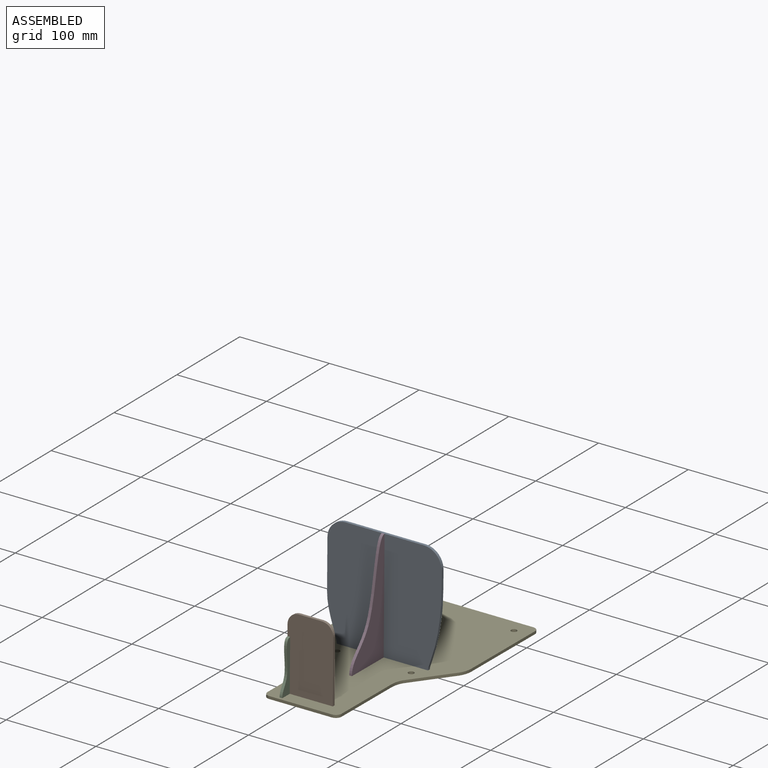
[diagram: assembled view]
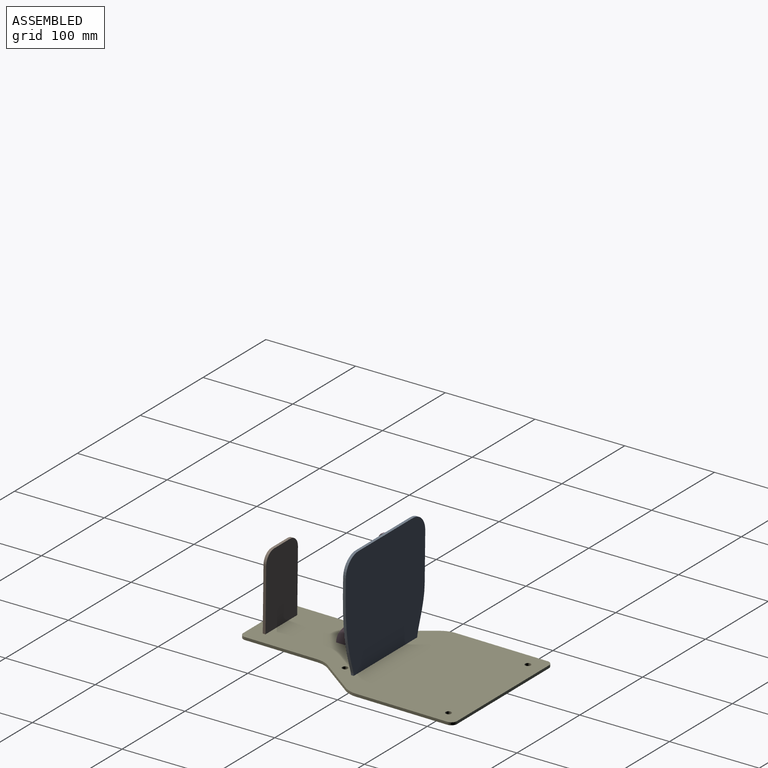
[diagram: assembled view, second angle]
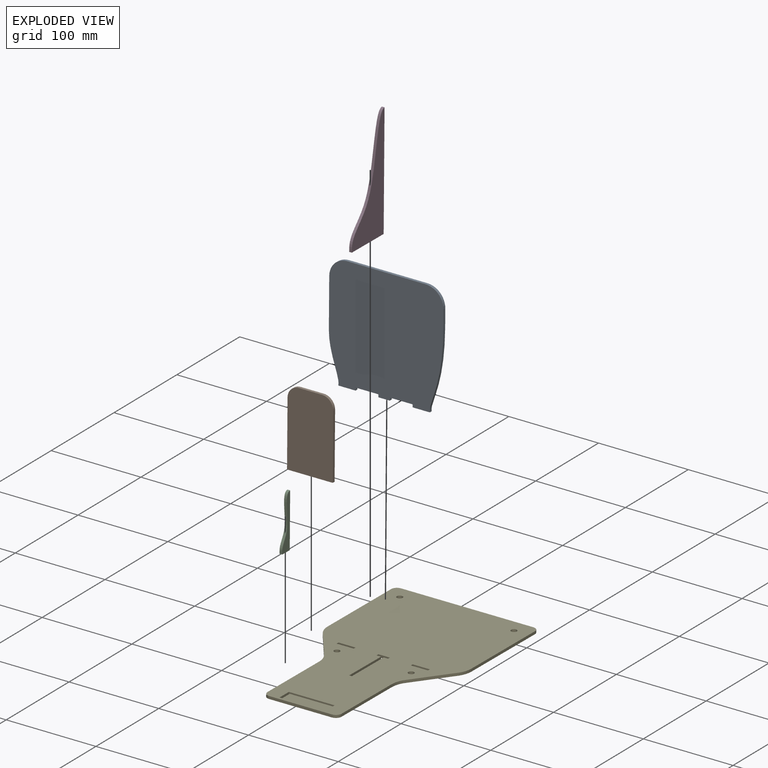
[diagram: exploded view]
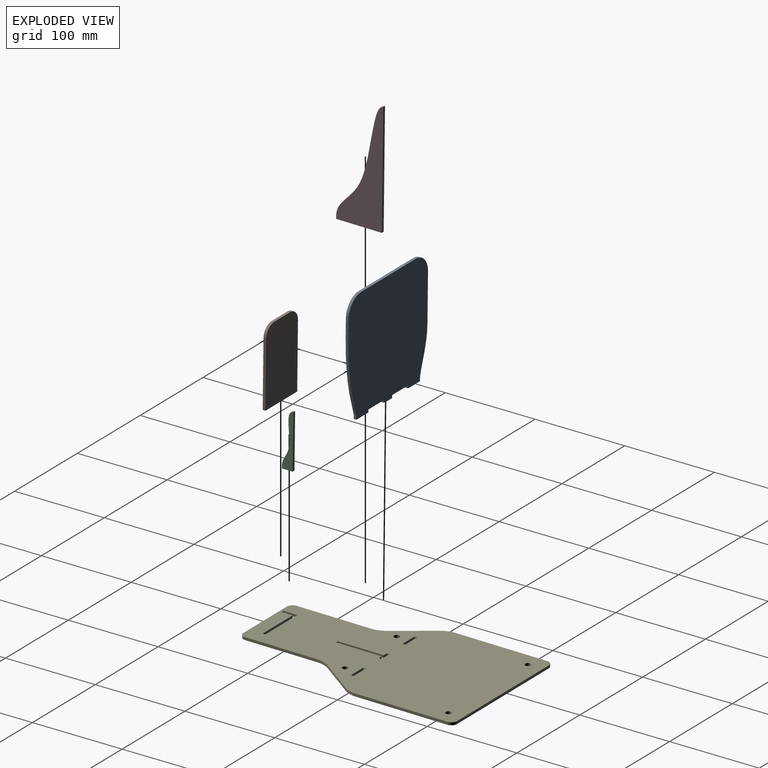
[diagram: exploded view, second angle]
ASSEMBLY  parts=5 mates=4
PART A: 20 faces, bbox 127x3x127 mm
  f0: plane 19.05x3mm, normal (0,0,-1), area 57.2mm2, adj f1,f17,f18,f19
  f1: plane 3x3mm, normal (1,0,0), area 9mm2, adj f0,f2,f18,f19
  f2: plane 25.4x3mm, normal (0,0,-1), area 76.2mm2, adj f1,f3,f18,f19
  f3: plane 3x3mm, normal (-1,0,0), area 9mm2, adj f2,f4,f18,f19
  f4: plane 12.7x3mm, normal (0,0,-1), area 38.1mm2, adj f3,f5,f18,f19
  f5: plane 3x3mm, normal (1,0,0), area 9mm2, adj f4,f6,f18,f19
  f6: plane 25.4x3mm, normal (0,0,-1), area 76.2mm2, adj f5,f7,f18,f19
  f7: plane 3x3mm, normal (-1,0,0), area 9mm2, adj f6,f8,f18,f19
  f8: plane 19.05x3mm, normal (0,0,-1), area 57.1mm2, adj f7,f9,f18,f19
  f9: plane 3x3mm, normal (1,0,0), area 9mm2, adj f8,f10,f18,f19
  f10: extruded ~85.29x14.33mm, area 260.9mm2, adj f9,f11,f18,f19
  f11: plane 18.71x3mm, normal (1,0,0), area 56.1mm2, adj f10,f12,f18,f19
  f12: cylinder r=20mm len=20mm, axis (0,1,0), area 94.2mm2, adj f11,f13,f18,f19
  f13: plane 87x3mm, normal (0,0,1), area 261mm2, adj f12,f14,f18,f19
  f14: cylinder r=20mm len=20mm, axis (0,1,0), area 94.2mm2, adj f13,f15,f18,f19
  f15: plane 53.82x3mm, normal (-1,0,0), area 161.5mm2, adj f14,f16,f18,f19
  f16: extruded ~50.18x11.07mm, area 154.8mm2, adj f15,f17,f18,f19
  f17: plane 3x3mm, normal (-1,0,0), area 9mm2, adj f0,f16,f18,f19
  f18: plane 127x127mm, normal (0,-1,0), area 15090mm2, adj f0,f1,f2,f3,f4,f5,f6,f7
  f19: plane 127x127mm, normal (0,1,0), area 15090mm2, adj f0,f1,f2,f3,f4,f5,f6,f7
PART B: 8 faces, bbox 50.8x3x85 mm
  f0: cylinder r=12.7mm len=12.7mm, axis (0,1,0), area 59.8mm2, adj f1,f5,f6,f7
  f1: plane 72.3x3mm, normal (-1,0,0), area 216.9mm2, adj f0,f2,f6,f7
  f2: plane 50.8x3mm, normal (0,0,-1), area 152.4mm2, adj f1,f3,f6,f7
  f3: plane 72.3x3mm, normal (1,0,0), area 216.9mm2, adj f2,f4,f6,f7
  f4: cylinder r=12.7mm len=12.7mm, axis (0,1,0), area 59.8mm2, adj f3,f5,f6,f7
  f5: plane 25.4x3mm, normal (0,0,1), area 76.2mm2, adj f0,f4,f6,f7
  f6: plane 85x50.8mm, normal (0,-1,0), area 4248.8mm2, adj f0,f1,f2,f3,f4,f5
  f7: plane 85x50.8mm, normal (0,1,0), area 4248.8mm2, adj f0,f1,f2,f3,f4,f5
PART C: 6 faces, bbox 3x14.6x60 mm
  f0: plane 60x3mm, normal (0,-1,0), area 180mm2, adj f1,f3,f4,f5
  f1: plane 12x3mm, normal (0,0,-1), area 36mm2, adj f0,f2,f4,f5
  f2: plane 3x3mm, normal (0,1,0), area 9mm2, adj f1,f3,f4,f5
  f3: extruded ~57x12mm, area 183.9mm2, adj f0,f2,f4,f5
  f4: plane 60x14.64mm, normal (1,0,0), area 372.6mm2, adj f0,f1,f2,f3
  f5: plane 60x14.64mm, normal (-1,0,0), area 372.6mm2, adj f0,f1,f2,f3
PART D: 6 faces, bbox 3x50.8x127 mm
  f0: plane 50.8x3mm, normal (0,0,-1), area 152.4mm2, adj f1,f3,f4,f5
  f1: plane 127x3mm, normal (0,1,0), area 381mm2, adj f0,f2,f4,f5
  f2: extruded ~124x50.8mm, area 413.9mm2, adj f1,f3,f4,f5
  f3: plane 3x3mm, normal (0,-1,0), area 9mm2, adj f0,f2,f4,f5
  f4: plane 127x50.8mm, normal (1,0,0), area 2928.2mm2, adj f0,f1,f2,f3
  f5: plane 127x50.8mm, normal (-1,0,0), area 2928.2mm2, adj f0,f1,f2,f3
PART E: 44 faces, bbox 159.8x265.1x3 mm
  f0: cylinder r=25.4mm len=15.79mm, axis (0,0,-1), area 51.1mm2, adj f1,f41,f42,f43
  f1: plane 37.85x27.63mm, normal (0.81,-0.59,0), area 140.6mm2, adj f0,f2,f42,f43
  f2: cylinder r=25.4mm len=16.87mm, axis (0,0,-1), area 55.4mm2, adj f1,f3,f42,f43
  f3: plane 101.6x3mm, normal (1,0,0), area 304.8mm2, adj f2,f4,f42,f43
  f4: cylinder r=6.35mm len=6.35mm, axis (0,0,-1), area 29.9mm2, adj f3,f5,f42,f43
  f5: plane 147.12x3mm, normal (0,1,0), area 441.4mm2, adj f4,f6,f42,f43
  f6: cylinder r=6.35mm len=6.35mm, axis (0,0,-1), area 29.9mm2, adj f5,f7,f42,f43
  f7: plane 101.6x3mm, normal (-1,0,0), area 304.8mm2, adj f6,f8,f42,f43
  f8: cylinder r=25.4mm len=14.72mm, axis (0,0,-1), area 47.1mm2, adj f7,f9,f42,f43
  f9: plane 37.8x27.7mm, normal (-0.81,-0.59,0), area 140.6mm2, adj f8,f10,f42,f43
  f10: cylinder r=25.4mm len=15.77mm, axis (0,0,-1), area 51mm2, adj f9,f11,f42,f43
  f11: plane 82.55x3mm, normal (-1,0,0), area 247.7mm2, adj f10,f12,f42,f43
  f12: cylinder r=6.35mm len=6.35mm, axis (0,0,-1), area 29.9mm2, adj f11,f13,f42,f43
  f13: plane 69.69x3mm, normal (0,-1,0), area 209.1mm2, adj f12,f14,f42,f43
  f14: cylinder r=6.35mm len=6.35mm, axis (0,0,-1), area 29.9mm2, adj f13,f41,f42,f43
  f15: plane 47.8x3mm, normal (0,1,0), area 143.4mm2, adj f16,f33,f42,f43
  f16: plane 12x3mm, normal (-1,0,0), area 36mm2, adj f15,f17,f42,f43
  f17: plane 3x3mm, normal (0,1,0), area 9mm2, adj f16,f18,f42,f43
  f18: plane 15x3mm, normal (1,0,0), area 45mm2, adj f17,f19,f42,f43
  f19: plane 50.8x3mm, normal (0,-1,0), area 152.4mm2, adj f18,f33,f42,f43
  f20: plane 19.05x3mm, normal (0,1,0), area 57.2mm2, adj f21,f38,f42,f43
  f21: plane 3x3mm, normal (1,0,0), area 9mm2, adj f20,f22,f42,f43
  f22: plane 19.05x3mm, normal (0,-1,0), area 57.2mm2, adj f21,f38,f42,f43
  f23: plane 19.05x3mm, normal (0,1,0), area 57.1mm2, adj f24,f39,f42,f43
  f24: plane 3x3mm, normal (1,0,0), area 9mm2, adj f23,f25,f42,f43
  f25: plane 19.05x3mm, normal (0,-1,0), area 57.1mm2, adj f24,f39,f42,f43
  f26: plane 3x3mm, normal (0,1,0), area 9mm2, adj f27,f40,f42,f43
  f27: plane 50.8x3mm, normal (1,0,0), area 152.4mm2, adj f26,f28,f42,f43
  f28: plane 4.85x3mm, normal (0,1,0), area 14.6mm2, adj f27,f29,f42,f43
  f29: plane 3x3mm, normal (1,0,0), area 9mm2, adj f28,f30,f42,f43
  f30: plane 12.7x3mm, normal (0,-1,0), area 38.1mm2, adj f29,f31,f42,f43
  f31: plane 3x3mm, normal (-1,0,0), area 9mm2, adj f30,f32,f42,f43
  f32: plane 4.85x3mm, normal (0,1,0), area 14.5mm2, adj f31,f40,f42,f43
  f33: plane 3x3mm, normal (-1,0,0), area 9mm2, adj f15,f19,f42,f43
  f34: cylinder r=3.17mm len=6.35mm, axis (0,0,-1), area 59.8mm2, adj f42,f43
  f35: cylinder r=3.17mm len=6.35mm, axis (0,0,-1), area 59.8mm2, adj f42,f43
  f36: cylinder r=3.17mm len=6.35mm, axis (0,0,-1), area 59.8mm2, adj f42,f43
  f37: cylinder r=3.17mm len=6.35mm, axis (0,0,-1), area 59.8mm2, adj f42,f43
  f38: plane 3x3mm, normal (-1,0,0), area 9mm2, adj f20,f22,f42,f43
  f39: plane 3x3mm, normal (-1,0,0), area 9mm2, adj f23,f25,f42,f43
  f40: plane 50.8x3mm, normal (-1,0,0), area 152.4mm2, adj f26,f32,f42,f43
  f41: plane 80.32x3mm, normal (1,0,0), area 241mm2, adj f0,f14,f42,f43
  f42: plane 265.13x159.82mm, normal (0,0,1), area 32234.8mm2, adj f0,f1,f2,f3,f4,f5,f6,f7
  f43: plane 265.13x159.82mm, normal (0,0,-1), area 32234.8mm2, adj f0,f1,f2,f3,f4,f5,f6,f7
PLACE A rot(axis=(-0.97,-0.02,0.25),0.7deg) t=(90.24,-105.14,99.47)mm
PLACE B rot(axis=(-0.97,-0.02,0.25),0.7deg) t=(-67,-222.45,10.87)mm
PLACE C rot(axis=(0,-0.01,-1),179.8deg) t=(-106.79,-195.37,2.57)mm
PLACE D rot(axis=(-0.97,-0.02,0.25),0.7deg) t=(-86.48,-4.29,55.27)mm
PLACE E rot(axis=(-0.97,-0.02,0.25),0.7deg) t=(87.2,9.6,83.45)mm
MATE fastened B.f2 <-> E.f43  axis (0,-0.01,-1) through (-58.92,-223.06,86.11)mm
MATE fastened D.f0 <-> E.f43  axis (0,-0.01,-1) through (-84.52,-159.64,85.37)mm
MATE fastened A.f0 <-> E.f43  axis (0,-0.01,-1) through (-135.48,-105.99,84.74)mm
MATE fastened C.f1 <-> E.f43  axis (0,-0.01,-1) through (-106.68,-236.7,86.26)mm
